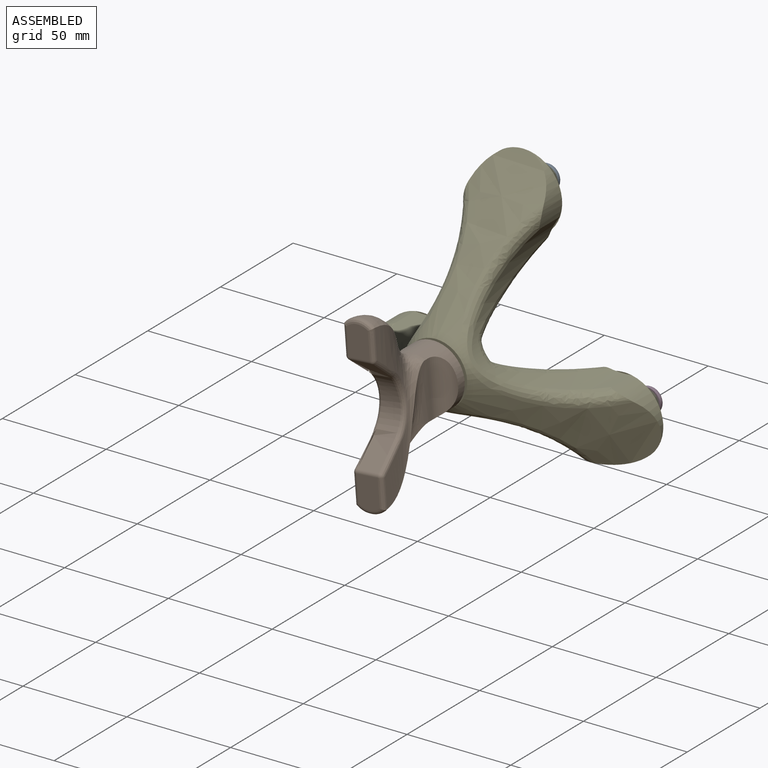
[diagram: assembled view]
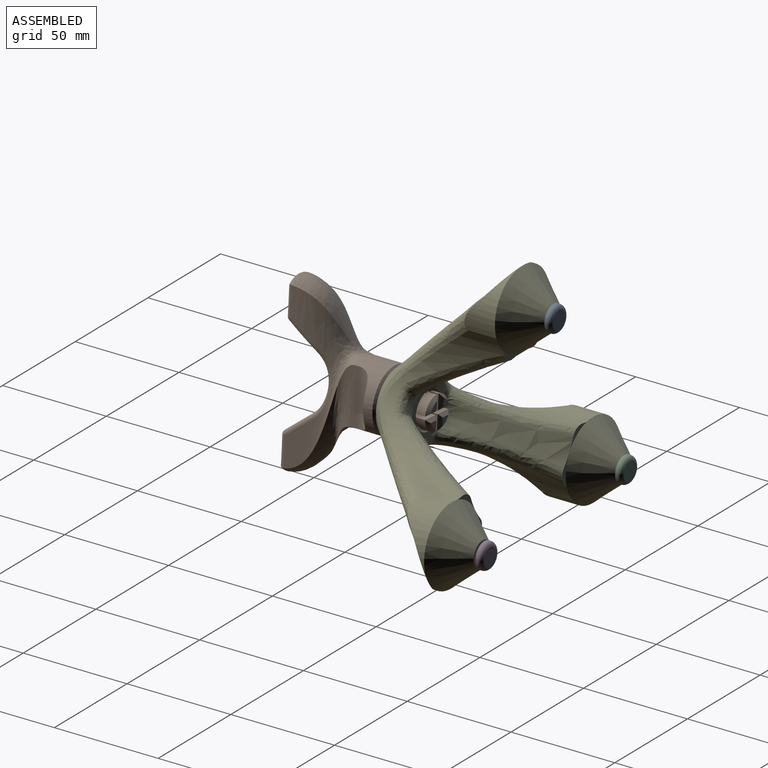
[diagram: assembled view, second angle]
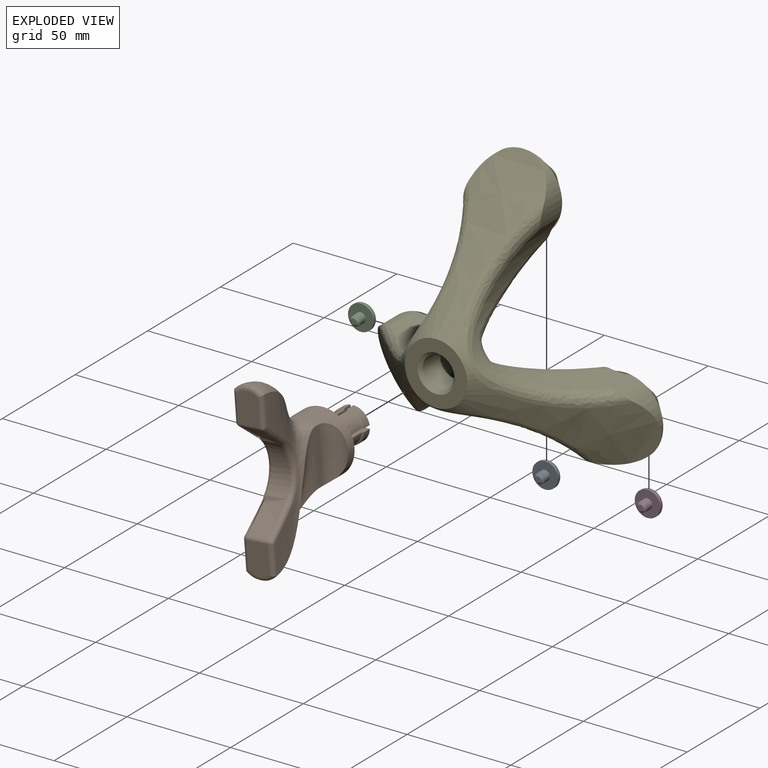
[diagram: exploded view]
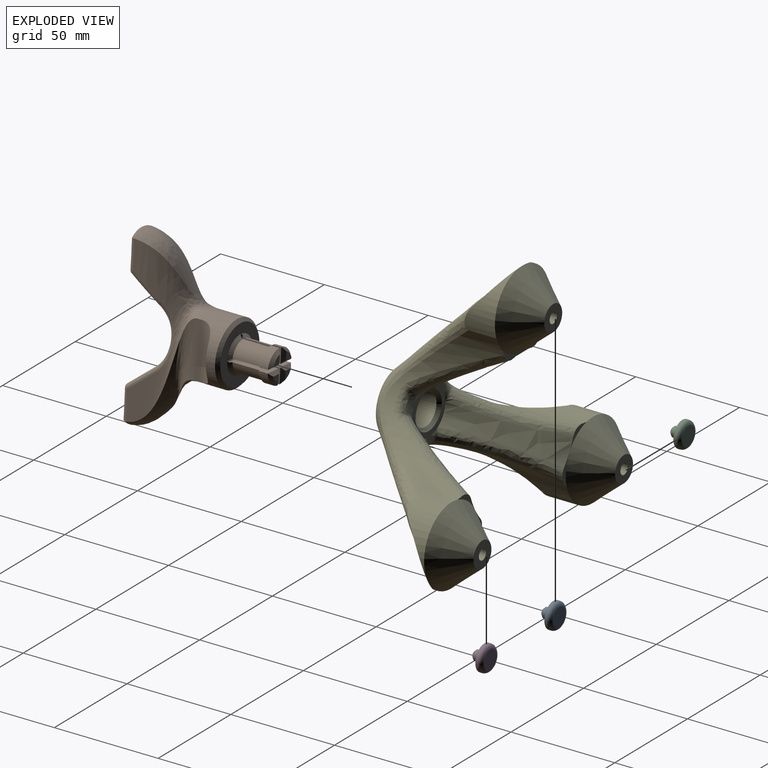
[diagram: exploded view, second angle]
ASSEMBLY  parts=5 mates=5
PART A: 7 faces, bbox 13.3x7.8x13.3 mm
  f0: cylinder r=6.15mm len=12.3mm, axis (0,1,0), area 38.6mm2, adj f1,f5
  f1: plane 12.3x12.3mm, normal (0,-1,0), area 100.7mm2, adj f0,f3
  f2: plane 8.3x8.3mm, normal (0,1,0), area 54.1mm2, adj f5
  f3: cylinder r=2.4mm len=4.8mm, axis (0,1,0), area 57.3mm2, adj f1,f6
  f4: plane 2.8x2.8mm, normal (0,-1,0), area 6.2mm2, adj f6
  f5: torus R=4.15mm, axis (0,-1,0), area 107.1mm2, adj f0,f2
  f6: cone r=1.4mm half-angle=45deg, axis (0,1,0), area 16.9mm2, adj f3,f4
PART B: 81 faces, bbox 78.3x104.2x133.4 mm
  f0: cylinder r=7.25mm len=12.75mm, axis (0,-1,0), area 126mm2, adj f11,f52,f53,f79
  f1: cylinder r=7.25mm len=12.75mm, axis (0,-1,0), area 126mm2, adj f12,f54,f55,f78
  f2: cylinder r=7.25mm len=12.75mm, axis (0,-1,0), area 126mm2, adj f13,f50,f51,f77
  f3: cylinder r=7.25mm len=12.75mm, axis (0,-1,0), area 126mm2, adj f14,f56,f57,f76
  f4: cylinder r=8mm len=7.21mm, axis (0,-1,0), area 44.3mm2, adj f11,f52,f53,f67
  f5: cylinder r=8mm len=7.21mm, axis (0,-1,0), area 44.3mm2, adj f12,f54,f55,f73
  f6: cylinder r=8mm len=7.21mm, axis (0,-1,0), area 44.3mm2, adj f13,f50,f51,f64
  f7: cylinder r=8mm len=7.21mm, axis (0,-1,0), area 44.3mm2, adj f14,f56,f57,f70
  f8: plane 3.85x3.85mm, normal (0,1,0), area 9.6mm2, adj f65,f66,f67
  f9: plane 3.85x3.85mm, normal (0,1,0), area 9.6mm2, adj f71,f72,f73
  f10: plane 3.85x3.85mm, normal (0,1,0), area 9.6mm2, adj f68,f69,f70
  f11: cone r=8mm half-angle=45deg, axis (0,1,0), area 11.1mm2, adj f0,f4,f52,f53
  f12: cone r=8mm half-angle=45deg, axis (0,1,0), area 11.1mm2, adj f1,f5,f54,f55
  f13: cone r=8mm half-angle=45deg, axis (0,1,0), area 11.1mm2, adj f2,f6,f50,f51
  f14: cone r=8mm half-angle=45deg, axis (0,1,0), area 11.1mm2, adj f3,f7,f56,f57
  f15: plane 58.35x51.43mm, normal (-1,0,0), area 415.1mm2, adj f18,f19,f20,f29,f30,f33,f74
  f16: plane 14.92x10.32mm, normal (0,-1,0), area 147.6mm2, adj f31,f34,f38,f39
  f17: bspline ~77.93x34mm, area 885mm2, adj f20,f24,f25,f34,f38,f41,f44,f45
  f18: bspline ~34x25.79mm, area 557.9mm2, adj f15,f20,f25,f29,f31,f32,f34
  f19: bspline ~34x25.79mm, area 418.6mm2, adj f15,f20,f24,f33,f36,f37,f41
  f20: cylinder r=15mm len=30mm, axis (0,1,0), area 794.1mm2, adj f15,f17,f18,f19,f22,f24,f74,f75
  f21: plane 27x27mm, normal (0,1,0), area 332mm2, adj f76,f77,f78,f79,f80
  f22: plane 58.35x34mm, normal (1,0,0), area 52.7mm2, adj f20,f25,f75
  f23: plane 14.96x10.32mm, normal (0,-1,0), area 148.1mm2, adj f37,f41,f43,f44
  f24: bspline ~31.89x27.58mm, area 429.4mm2, adj f17,f19,f20,f41
  f25: bspline ~55.05x31.91mm, area 650.2mm2, adj f17,f18,f22,f34
  f26: plane 12.83x10.32mm, normal (0,-0.62,0.78), area 164.6mm2, adj f28,f32,f39,f45
  f27: plane 12.83x10.32mm, normal (0,-0.62,-0.78), area 162mm2, adj f28,f36,f43,f48
  f28: cylinder r=16.85mm len=26.35mm, axis (-1,0,0), area 289.6mm2, adj f26,f27,f29,f30,f33,f47
  f29: bspline ~5.31x5.21mm, area 8.1mm2, adj f15,f18,f28,f30
  f30: torus R=18.85mm, axis (1,0,0), area 84.9mm2, adj f15,f28,f29,f33
  f31: bspline ~24.35x2.09mm, area 43.1mm2, adj f16,f18,f34,f35
  f32: bspline ~16.01x13.27mm, area 53.4mm2, adj f18,f26,f35
  f33: bspline ~3.96x3.96mm, area 7.1mm2, adj f15,f19,f28,f30
  f34: bspline ~14.76x4.79mm, area 48mm2, adj f16,f17,f18,f25,f31,f38
  f35: sphere r=2mm, area 2.7mm2, adj f31,f32,f39
  f36: bspline ~16.35x13.59mm, area 51.9mm2, adj f19,f27,f40
  f37: bspline ~21.99x2.02mm, area 42.6mm2, adj f19,f23,f40,f41
  f38: bspline ~52.59x2.02mm, area 42.3mm2, adj f16,f17,f34,f42
  f39: cylinder r=2mm len=10.32mm, axis (-1,0,0), area 18.5mm2, adj f16,f26,f35,f42
  f40: sphere r=2mm, area 2.6mm2, adj f36,f37,f43
  f41: bspline ~14.79x4.78mm, area 46.9mm2, adj f17,f19,f23,f24,f37,f44
  f42: sphere r=2mm, area 3.6mm2, adj f38,f39,f45
  f43: cylinder r=2mm len=10.32mm, axis (-1,0,0), area 18.5mm2, adj f23,f27,f40,f46
  f44: bspline ~32.41x2.05mm, area 43mm2, adj f17,f23,f41,f46
  f45: bspline ~18.66x15.46mm, area 51.9mm2, adj f17,f26,f42,f47
  f46: sphere r=2mm, area 3.6mm2, adj f43,f44,f48
  f47: bspline ~32.53x10.96mm, area 101.8mm2, adj f17,f28,f45,f48
  f48: bspline ~17.18x14.14mm, area 54.4mm2, adj f17,f27,f46,f47
  f49: plane 3.85x3.85mm, normal (0,1,0), area 9.6mm2, adj f62,f63,f64
  f50: plane 18.25x7.22mm, normal (-1,0,0), area 121.5mm2, adj f2,f6,f13,f51,f59,f62,f77
  f51: plane 18.25x7.22mm, normal (0,0,-1), area 121.5mm2, adj f2,f6,f13,f50,f58,f63,f77
  f52: plane 18.25x7.22mm, normal (0,0,1), area 121.5mm2, adj f0,f4,f11,f53,f58,f65,f79
  f53: plane 18.25x7.22mm, normal (-1,0,0), area 121.5mm2, adj f0,f4,f11,f52,f60,f66,f79
  f54: plane 18.25x7.22mm, normal (1,0,0), area 121.5mm2, adj f1,f5,f12,f55,f60,f71,f78
  f55: plane 18.25x7.22mm, normal (0,0,1), area 121.5mm2, adj f1,f5,f12,f54,f61,f72,f78
  f56: plane 18.25x7.22mm, normal (1,0,0), area 121.5mm2, adj f3,f7,f14,f57,f59,f69,f76
  f57: plane 18.25x7.22mm, normal (0,0,-1), area 121.5mm2, adj f3,f7,f14,f56,f61,f68,f76
  f58: cylinder r=0.75mm len=8.75mm, axis (-1,0,0), area 18.8mm2, adj f51,f52,f59,f60,f77,f79
  f59: cylinder r=0.75mm len=8.75mm, axis (0,0,1), area 18.8mm2, adj f50,f56,f58,f61,f76,f77
  f60: cylinder r=0.75mm len=8.75mm, axis (0,0,1), area 18.8mm2, adj f53,f54,f58,f61,f78,f79
  f61: cylinder r=0.75mm len=8.75mm, axis (-1,0,0), area 18.8mm2, adj f55,f57,f59,f60,f76,f78
  f62: plane 7.39x1.68mm, normal (-0.71,0.71,0), area 11.8mm2, adj f49,f50,f63,f64
  f63: plane 7.39x1.68mm, normal (0,0.71,-0.71), area 11.8mm2, adj f49,f51,f62,f64
  f64: cone r=6.5mm half-angle=45deg, axis (0,-1,0), area 17.4mm2, adj f6,f49,f62,f63
  f65: plane 7.39x1.68mm, normal (0,0.71,0.71), area 11.8mm2, adj f8,f52,f66,f67
  f66: plane 7.39x1.68mm, normal (-0.71,0.71,0), area 11.8mm2, adj f8,f53,f65,f67
  f67: cone r=6.5mm half-angle=45deg, axis (0,-1,0), area 17.4mm2, adj f4,f8,f65,f66
  f68: plane 7.39x1.68mm, normal (0,0.71,-0.71), area 11.8mm2, adj f10,f57,f69,f70
  f69: plane 7.39x1.68mm, normal (0.71,0.71,0), area 11.8mm2, adj f10,f56,f68,f70
  f70: cone r=6.5mm half-angle=45deg, axis (0,-1,0), area 17.4mm2, adj f7,f10,f68,f69
  f71: plane 7.39x1.68mm, normal (0.71,0.71,0), area 11.8mm2, adj f9,f54,f72,f73
  f72: plane 7.39x1.68mm, normal (0,0.71,0.71), area 11.8mm2, adj f9,f55,f71,f73
  f73: cone r=6.5mm half-angle=45deg, axis (0,-1,0), area 17.4mm2, adj f5,f9,f71,f72
  f74: cylinder r=8mm len=26.35mm, axis (0,0,-1), area 0mm2, adj f15,f20
  f75: cylinder r=8mm len=26.35mm, axis (0,0,1), area 0mm2, adj f20,f22
  f76: cone r=7.25mm half-angle=45deg, axis (0,-1,0), area 24.2mm2, adj f3,f21,f56,f57,f59,f61
  f77: cone r=7.25mm half-angle=45deg, axis (0,-1,0), area 24.2mm2, adj f2,f21,f50,f51,f58,f59
  f78: cone r=7.25mm half-angle=45deg, axis (0,-1,0), area 24.2mm2, adj f1,f21,f54,f55,f60,f61
  f79: cone r=7.25mm half-angle=45deg, axis (0,-1,0), area 24.2mm2, adj f0,f21,f52,f53,f58,f60
  f80: cone r=15mm half-angle=45deg, axis (0,-1,0), area 189.9mm2, adj f20,f21
PART C: same geometry as A
PART D: same geometry as A
PART E: 60 faces, bbox 150.9x75.9x150.9 mm
  f0: bspline ~8.48x7.64mm, area 51.5mm2, adj f1,f11,f20,f55
  f1: bspline ~8.55x5.37mm, area 27.9mm2, adj f0,f11,f20,f54
  f2: bspline ~10.67x10.18mm, area 51.5mm2, adj f3,f10,f20,f52
  f3: bspline ~8.43x6.67mm, area 27.9mm2, adj f2,f10,f20,f51
  f4: bspline ~10.66x10.17mm, area 51.5mm2, adj f5,f9,f20,f49
  f5: bspline ~8.42x7.45mm, area 27.9mm2, adj f4,f9,f20,f48
  f6: cone r=37.5mm half-angle=30deg, axis (0,1,0), area 513.8mm2, adj f15,f16,f20,f48,f53
  f7: cone r=37.5mm half-angle=30deg, axis (0,1,0), area 513.8mm2, adj f12,f13,f20,f51,f56
  f8: cone r=75mm half-angle=45deg, axis (0,1,0), area 5226mm2, adj f18,f33,f34,f35,f36,f37,f38,f57
  f9: cylinder r=37.5mm len=60.11mm, axis (0,1,0), area 1257.3mm2, adj f4,f5,f15,f17,f24,f25,f34,f38
  f10: cylinder r=37.5mm len=60.11mm, axis (0,1,0), area 1257.2mm2, adj f2,f3,f12,f16,f21,f32,f35,f36
  f11: cylinder r=37.5mm len=69.08mm, axis (0,1,0), area 1257.3mm2, adj f0,f1,f13,f14,f28,f29,f33,f37
  f12: plane 12.9x10.26mm, normal (0,1,0), area 19.3mm2, adj f7,f10,f30,f51
  f13: plane 15.74x5.84mm, normal (0,1,0), area 19.3mm2, adj f7,f11,f30,f56
  f14: plane 15.74x5.84mm, normal (0,1,0), area 19.3mm2, adj f11,f19,f26,f54
  f15: plane 14.61x7.52mm, normal (0,1,0), area 19.3mm2, adj f6,f9,f22,f48
  f16: plane 14.61x7.51mm, normal (0,1,0), area 19.3mm2, adj f6,f10,f22,f53
  f17: plane 12.9x10.25mm, normal (0,1,0), area 19.3mm2, adj f9,f19,f26,f50
  f18: plane 30x30mm, normal (0,-1,0), area 452.4mm2, adj f8,f40
  f19: cone r=37.5mm half-angle=30deg, axis (0,1,0), area 513.8mm2, adj f14,f17,f20,f50,f54
  f20: plane 23.14x23.13mm, normal (0,1,0), area 163mm2, adj f0,f1,f2,f3,f4,f5,f6,f7
  f21: plane 6.68x4.03mm, normal (0,-1,0), area 3.2mm2, adj f10,f22
  f22: cone r=18.75mm half-angle=40deg, axis (0,-1,0), area 1532.6mm2, adj f15,f16,f21,f23,f24,f34,f36
  f23: plane 12.33x12.33mm, normal (0,1,0), area 99.7mm2, adj f22,f46
  f24: plane 6.68x4.03mm, normal (0,-1,0), area 3.2mm2, adj f9,f22
  f25: plane 7.81x0.63mm, normal (0,-1,0), area 3.2mm2, adj f9,f26
  f26: cone r=18.75mm half-angle=40deg, axis (0,-1,0), area 1532.6mm2, adj f14,f17,f25,f27,f28,f33,f38
  f27: plane 12.33x12.33mm, normal (0,1,0), area 99.7mm2, adj f26,f44
  f28: plane 6.84x3.77mm, normal (0,-1,0), area 3.2mm2, adj f11,f26
  f29: plane 6.84x3.77mm, normal (0,-1,0), area 3.2mm2, adj f11,f30
  f30: cone r=18.75mm half-angle=40deg, axis (0,-1,0), area 1532.6mm2, adj f12,f13,f29,f31,f32,f35,f37
  f31: plane 12.33x12.33mm, normal (0,1,0), area 99.7mm2, adj f30,f42
  f32: plane 7.81x0.63mm, normal (0,-1,0), area 3.2mm2, adj f10,f30
  f33: cylinder r=18.75mm len=30.41mm, axis (0,1,0), area 278.8mm2, adj f8,f11,f26,f57
  f34: cylinder r=18.75mm len=24.89mm, axis (0,1,0), area 278.8mm2, adj f8,f9,f22,f59
  f35: cylinder r=18.75mm len=27.79mm, axis (0,1,0), area 278.8mm2, adj f8,f10,f30,f58
  f36: cylinder r=18.75mm len=24.89mm, axis (0,1,0), area 278.8mm2, adj f8,f10,f22,f58
  f37: cylinder r=18.75mm len=30.41mm, axis (0,1,0), area 278.8mm2, adj f8,f11,f30,f57
  f38: cylinder r=18.75mm len=27.79mm, axis (0,1,0), area 278.8mm2, adj f8,f9,f26,f59
  f39: cylinder r=7.5mm len=15mm, axis (0,-1,0), area 565.5mm2, adj f40,f41
  f40: cone r=7.5mm half-angle=45deg, axis (0,-1,0), area 110mm2, adj f18,f39
  f41: cone r=7.5mm half-angle=45deg, axis (0,1,0), area 110mm2, adj f20,f39
  f42: cylinder r=2.5mm len=5mm, axis (0,1,0), area 78.5mm2, adj f31,f43
  f43: plane 5x5mm, normal (0,1,0), area 19.6mm2, adj f42
  f44: cylinder r=2.5mm len=5mm, axis (0,1,0), area 78.5mm2, adj f27,f45
  f45: plane 5x5mm, normal (0,1,0), area 19.6mm2, adj f44
  f46: cylinder r=2.5mm len=5mm, axis (0,1,0), area 78.5mm2, adj f23,f47
  f47: plane 5x5mm, normal (0,1,0), area 19.6mm2, adj f46
  f48: bspline ~55.77x35.92mm, area 458.6mm2, adj f5,f6,f9,f15
  f49: bspline ~9.09x8.86mm, area 28mm2, adj f4,f9,f20,f50
  f50: bspline ~54.89x32.63mm, area 458.6mm2, adj f9,f17,f19,f49
  f51: bspline ~55.77x33.12mm, area 458.6mm2, adj f3,f7,f10,f12
  f52: bspline ~9.26x8.86mm, area 28mm2, adj f2,f10,f20,f53
  f53: bspline ~54.89x35.27mm, area 458.6mm2, adj f6,f10,f16,f52
  f54: bspline ~55.77x32.72mm, area 458.6mm2, adj f1,f11,f14,f19
  f55: bspline ~8.86x8.55mm, area 28mm2, adj f0,f11,f20,f56
  f56: bspline ~54.89x32.04mm, area 458.6mm2, adj f7,f11,f13,f55
  f57: bspline ~87.64x53.41mm, area 992.8mm2, adj f8,f11,f33,f37
  f58: bspline ~80.03x56.98mm, area 992.8mm2, adj f8,f10,f35,f36
  f59: bspline ~77.52x58.73mm, area 992.8mm2, adj f8,f9,f34,f38
PLACE A t=(-132.39,15.69,151.19)mm
PLACE B rot(axis=(0,-1,0),4.3deg) t=(-132.39,-62.49,94.94)mm
PLACE C t=(-181.11,15.67,66.81)mm
PLACE D t=(-83.68,16.56,66.81)mm
PLACE E t=(-132.39,-2.31,94.94)mm fixed
MATE slider E.f26 <-> D.f3  axis (0,1,0) through (-83.68,12.69,66.81)mm
MATE cylindrical E.f39 <-> B.f0  axis (0,-1,0) through (-132.39,-60.81,94.94)mm
MATE parallel E.f22 <-> A.f0  axis (0,-1,0) through (-132.39,12.69,151.19)mm
MATE slider E.f30 <-> C.f3  axis (0,1,0) through (-181.11,7.69,66.81)mm
MATE slider A.f3 <-> E.f22  axis (0,-1,0) through (-132.39,7.89,151.19)mm
